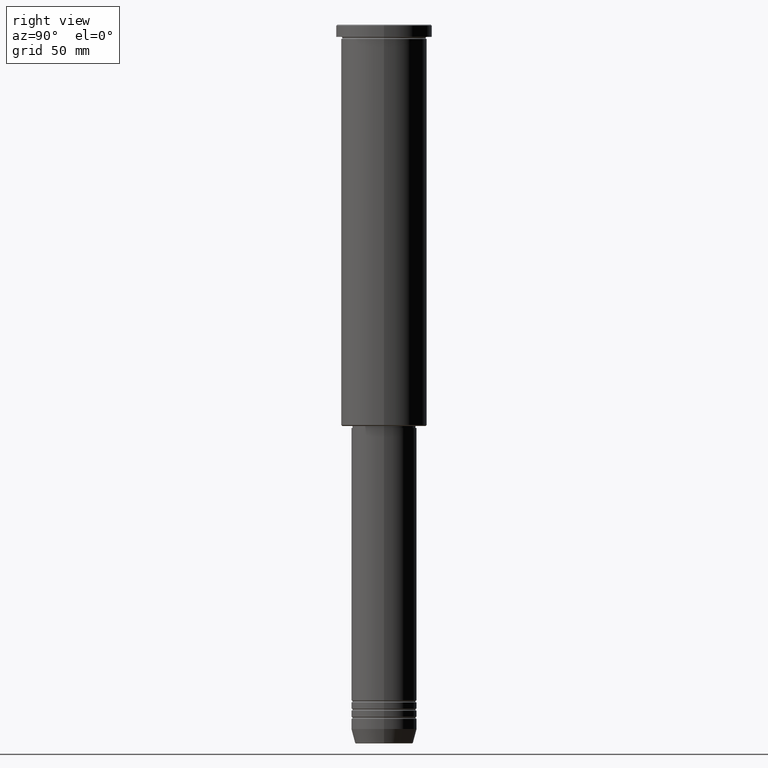
[diagram: clean part render]
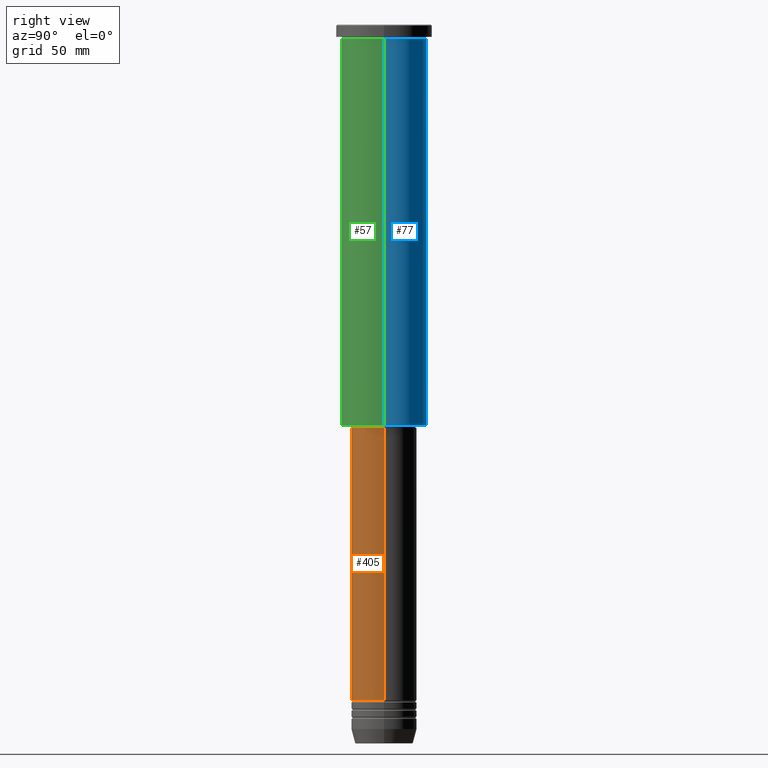
[diagram: same view with three faces highlighted in distinct colors, each labeled with its STEP entity id]
A machine part, right view with three faces highlighted in distinct colors.
Their STEP definitions:

[orange] entity #405 — the highlighted cylindrical surface (edge-blend (fillet) strip) has radius 16 mm, axis along (-0, -0, 1).
#41 = CARTESIAN_POINT ( 'NONE',  ( 16.00000000000000000, 0.000000000000000000, 0.000000000000000000 ) ) ;
#81 = EDGE_CURVE ( 'NONE', #437, #835, #417, .T. ) ;
#106 = FACE_OUTER_BOUND ( 'NONE', #423, .T. ) ;
#108 = DIRECTION ( 'NONE',  ( -0.000000000000000000, -0.000000000000000000, 1.000000000000000000 ) ) ;
#182 = DIRECTION ( 'NONE',  ( 1.000000000000000000, 0.000000000000000000, 0.000000000000000000 ) ) ;
#265 = LINE ( 'NONE', #878, #432 ) ;
#270 = CARTESIAN_POINT ( 'NONE',  ( -16.00000000000000000, 1.959434878635765131E-15, -329.9999999999999432 ) ) ;
#284 = CARTESIAN_POINT ( 'NONE',  ( 16.00000000000000355, 0.000000000000000000, -196.9999999999999432 ) ) ;
#293 = CYLINDRICAL_SURFACE ( 'NONE', #1165, 16.00000000000000000 ) ;
#379 = CARTESIAN_POINT ( 'NONE',  ( 0.000000000000000000, 0.000000000000000000, -196.9999999999999432 ) ) ;
#380 = DIRECTION ( 'NONE',  ( 1.000000000000000000, 0.000000000000000000, 0.000000000000000000 ) ) ;
#390 = ORIENTED_EDGE ( 'NONE', *, *, #858, .T. ) ;
#396 = ORIENTED_EDGE ( 'NONE', *, *, #704, .F. ) ;
#405 = ADVANCED_FACE ( 'NONE', ( #106 ), #293, .T. ) ;
#412 = CIRCLE ( 'NONE', #780, 16.00000000000000355 ) ;
#416 = VERTEX_POINT ( 'NONE', #270 ) ;
#417 = LINE ( 'NONE', #41, #495 ) ;
#423 = EDGE_LOOP ( 'NONE', ( #396, #390, #601, #876 ) ) ;
#432 = VECTOR ( 'NONE', #797, 1000.000000000000000 ) ;
#437 = VERTEX_POINT ( 'NONE', #1181 ) ;
#495 = VECTOR ( 'NONE', #1139, 1000.000000000000000 ) ;
#498 = AXIS2_PLACEMENT_3D ( 'NONE', #1003, #108, #182 ) ;
#601 = ORIENTED_EDGE ( 'NONE', *, *, #81, .T. ) ;
#704 = EDGE_CURVE ( 'NONE', #416, #896, #265, .T. ) ;
#780 = AXIS2_PLACEMENT_3D ( 'NONE', #379, #898, #906 ) ;
#797 = DIRECTION ( 'NONE',  ( -0.000000000000000000, -0.000000000000000000, 1.000000000000000000 ) ) ;
#801 = CARTESIAN_POINT ( 'NONE',  ( -16.00000000000000355, 1.959434878635765526E-15, -196.9999999999999432 ) ) ;
#809 = EDGE_CURVE ( 'NONE', #896, #835, #412, .T. ) ;
#835 = VERTEX_POINT ( 'NONE', #284 ) ;
#837 = CARTESIAN_POINT ( 'NONE',  ( 0.000000000000000000, 0.000000000000000000, 0.000000000000000000 ) ) ;
#858 = EDGE_CURVE ( 'NONE', #416, #437, #986, .T. ) ;
#876 = ORIENTED_EDGE ( 'NONE', *, *, #809, .F. ) ;
#878 = CARTESIAN_POINT ( 'NONE',  ( -16.00000000000000000, 1.959434878635765131E-15, 0.000000000000000000 ) ) ;
#896 = VERTEX_POINT ( 'NONE', #801 ) ;
#898 = DIRECTION ( 'NONE',  ( -0.000000000000000000, -0.000000000000000000, 1.000000000000000000 ) ) ;
#906 = DIRECTION ( 'NONE',  ( 1.000000000000000000, 0.000000000000000000, 0.000000000000000000 ) ) ;
#986 = CIRCLE ( 'NONE', #498, 16.00000000000000000 ) ;
#1003 = CARTESIAN_POINT ( 'NONE',  ( 0.000000000000000000, 0.000000000000000000, -329.9999999999999432 ) ) ;
#1018 = DIRECTION ( 'NONE',  ( -0.000000000000000000, -0.000000000000000000, 1.000000000000000000 ) ) ;
#1139 = DIRECTION ( 'NONE',  ( -0.000000000000000000, -0.000000000000000000, 1.000000000000000000 ) ) ;
#1165 = AXIS2_PLACEMENT_3D ( 'NONE', #837, #1018, #380 ) ;
#1181 = CARTESIAN_POINT ( 'NONE',  ( 16.00000000000000000, 0.000000000000000000, -329.9999999999999432 ) ) ;

[blue] entity #77 — the highlighted cylindrical surface (partial cylindrical patch) has radius 21 mm, axis along (-0, -0, 1).
#7 = DIRECTION ( 'NONE',  ( -0.000000000000000000, -0.000000000000000000, 1.000000000000000000 ) ) ;
#31 = CIRCLE ( 'NONE', #476, 21.00000000000000000 ) ;
#48 = DIRECTION ( 'NONE',  ( -0.000000000000000000, -0.000000000000000000, 1.000000000000000000 ) ) ;
#50 = CARTESIAN_POINT ( 'NONE',  ( 21.00000000000000000, 0.000000000000000000, 0.000000000000000000 ) ) ;
#75 = CARTESIAN_POINT ( 'NONE',  ( -21.00000000000000000, 2.571758278209441661E-15, -6.999999999999993783 ) ) ;
#76 = CARTESIAN_POINT ( 'NONE',  ( 21.00000000000000000, 0.000000000000000000, -6.999999999999993783 ) ) ;
#77 = ADVANCED_FACE ( 'NONE', ( #198 ), #944, .T. ) ;
#145 = DIRECTION ( 'NONE',  ( -0.000000000000000000, -0.000000000000000000, 1.000000000000000000 ) ) ;
#198 = FACE_OUTER_BOUND ( 'NONE', #530, .T. ) ;
#237 = AXIS2_PLACEMENT_3D ( 'NONE', #677, #424, #1119 ) ;
#336 = VERTEX_POINT ( 'NONE', #75 ) ;
#408 = LINE ( 'NONE', #50, #608 ) ;
#424 = DIRECTION ( 'NONE',  ( -0.000000000000000000, -0.000000000000000000, 1.000000000000000000 ) ) ;
#455 = CARTESIAN_POINT ( 'NONE',  ( 0.000000000000000000, 0.000000000000000000, -6.999999999999993783 ) ) ;
#476 = AXIS2_PLACEMENT_3D ( 'NONE', #455, #7, #803 ) ;
#530 = EDGE_LOOP ( 'NONE', ( #831, #1016, #762, #690 ) ) ;
#539 = AXIS2_PLACEMENT_3D ( 'NONE', #676, #48, #850 ) ;
#550 = VERTEX_POINT ( 'NONE', #952 ) ;
#586 = EDGE_CURVE ( 'NONE', #550, #675, #1027, .T. ) ;
#600 = DIRECTION ( 'NONE',  ( -0.000000000000000000, -0.000000000000000000, 1.000000000000000000 ) ) ;
#604 = EDGE_CURVE ( 'NONE', #550, #903, #408, .T. ) ;
#608 = VECTOR ( 'NONE', #145, 1000.000000000000000 ) ;
#672 = VECTOR ( 'NONE', #600, 1000.000000000000000 ) ;
#675 = VERTEX_POINT ( 'NONE', #969 ) ;
#676 = CARTESIAN_POINT ( 'NONE',  ( 0.000000000000000000, 0.000000000000000000, 0.000000000000000000 ) ) ;
#677 = CARTESIAN_POINT ( 'NONE',  ( 0.000000000000000000, 0.000000000000000000, -195.4999999999999432 ) ) ;
#686 = EDGE_CURVE ( 'NONE', #675, #336, #1151, .T. ) ;
#690 = ORIENTED_EDGE ( 'NONE', *, *, #604, .F. ) ;
#762 = ORIENTED_EDGE ( 'NONE', *, *, #844, .F. ) ;
#790 = CARTESIAN_POINT ( 'NONE',  ( -21.00000000000000000, 2.571758278209441661E-15, 0.000000000000000000 ) ) ;
#803 = DIRECTION ( 'NONE',  ( 1.000000000000000000, 0.000000000000000000, 0.000000000000000000 ) ) ;
#831 = ORIENTED_EDGE ( 'NONE', *, *, #586, .T. ) ;
#844 = EDGE_CURVE ( 'NONE', #903, #336, #31, .T. ) ;
#850 = DIRECTION ( 'NONE',  ( 1.000000000000000000, 0.000000000000000000, 0.000000000000000000 ) ) ;
#903 = VERTEX_POINT ( 'NONE', #76 ) ;
#944 = CYLINDRICAL_SURFACE ( 'NONE', #539, 21.00000000000000000 ) ;
#952 = CARTESIAN_POINT ( 'NONE',  ( 21.00000000000000000, 0.000000000000000000, -195.4999999999999432 ) ) ;
#969 = CARTESIAN_POINT ( 'NONE',  ( -21.00000000000000000, 2.571758278209441661E-15, -195.4999999999999432 ) ) ;
#1016 = ORIENTED_EDGE ( 'NONE', *, *, #686, .T. ) ;
#1027 = CIRCLE ( 'NONE', #237, 21.00000000000000000 ) ;
#1119 = DIRECTION ( 'NONE',  ( -1.000000000000000000, 0.000000000000000000, 0.000000000000000000 ) ) ;
#1151 = LINE ( 'NONE', #790, #672 ) ;

[green] entity #57 — the highlighted cylindrical surface (partial cylindrical patch) has radius 21 mm, axis along (-0, -0, 1).
#50 = CARTESIAN_POINT ( 'NONE',  ( 21.00000000000000000, 0.000000000000000000, 0.000000000000000000 ) ) ;
#57 = ADVANCED_FACE ( 'NONE', ( #118 ), #399, .T. ) ;
#75 = CARTESIAN_POINT ( 'NONE',  ( -21.00000000000000000, 2.571758278209441661E-15, -6.999999999999993783 ) ) ;
#76 = CARTESIAN_POINT ( 'NONE',  ( 21.00000000000000000, 0.000000000000000000, -6.999999999999993783 ) ) ;
#109 = CIRCLE ( 'NONE', #755, 21.00000000000000000 ) ;
#118 = FACE_OUTER_BOUND ( 'NONE', #200, .T. ) ;
#145 = DIRECTION ( 'NONE',  ( -0.000000000000000000, -0.000000000000000000, 1.000000000000000000 ) ) ;
#176 = DIRECTION ( 'NONE',  ( -0.000000000000000000, -0.000000000000000000, 1.000000000000000000 ) ) ;
#200 = EDGE_LOOP ( 'NONE', ( #378, #748, #264, #1098 ) ) ;
#208 = AXIS2_PLACEMENT_3D ( 'NONE', #278, #832, #577 ) ;
#264 = ORIENTED_EDGE ( 'NONE', *, *, #604, .T. ) ;
#268 = DIRECTION ( 'NONE',  ( 1.000000000000000000, 0.000000000000000000, 0.000000000000000000 ) ) ;
#278 = CARTESIAN_POINT ( 'NONE',  ( 0.000000000000000000, 0.000000000000000000, 0.000000000000000000 ) ) ;
#312 = CIRCLE ( 'NONE', #633, 21.00000000000000000 ) ;
#336 = VERTEX_POINT ( 'NONE', #75 ) ;
#378 = ORIENTED_EDGE ( 'NONE', *, *, #686, .F. ) ;
#399 = CYLINDRICAL_SURFACE ( 'NONE', #208, 21.00000000000000000 ) ;
#408 = LINE ( 'NONE', #50, #608 ) ;
#550 = VERTEX_POINT ( 'NONE', #952 ) ;
#559 = DIRECTION ( 'NONE',  ( -0.000000000000000000, -0.000000000000000000, 1.000000000000000000 ) ) ;
#562 = CARTESIAN_POINT ( 'NONE',  ( 0.000000000000000000, 0.000000000000000000, -6.999999999999993783 ) ) ;
#577 = DIRECTION ( 'NONE',  ( 1.000000000000000000, 0.000000000000000000, 0.000000000000000000 ) ) ;
#600 = DIRECTION ( 'NONE',  ( -0.000000000000000000, -0.000000000000000000, 1.000000000000000000 ) ) ;
#604 = EDGE_CURVE ( 'NONE', #550, #903, #408, .T. ) ;
#608 = VECTOR ( 'NONE', #145, 1000.000000000000000 ) ;
#632 = CARTESIAN_POINT ( 'NONE',  ( 0.000000000000000000, 0.000000000000000000, -195.4999999999999432 ) ) ;
#633 = AXIS2_PLACEMENT_3D ( 'NONE', #562, #176, #268 ) ;
#672 = VECTOR ( 'NONE', #600, 1000.000000000000000 ) ;
#675 = VERTEX_POINT ( 'NONE', #969 ) ;
#686 = EDGE_CURVE ( 'NONE', #675, #336, #1151, .T. ) ;
#713 = DIRECTION ( 'NONE',  ( -1.000000000000000000, 0.000000000000000000, 0.000000000000000000 ) ) ;
#748 = ORIENTED_EDGE ( 'NONE', *, *, #856, .T. ) ;
#755 = AXIS2_PLACEMENT_3D ( 'NONE', #632, #559, #713 ) ;
#790 = CARTESIAN_POINT ( 'NONE',  ( -21.00000000000000000, 2.571758278209441661E-15, 0.000000000000000000 ) ) ;
#832 = DIRECTION ( 'NONE',  ( -0.000000000000000000, -0.000000000000000000, 1.000000000000000000 ) ) ;
#856 = EDGE_CURVE ( 'NONE', #675, #550, #109, .T. ) ;
#903 = VERTEX_POINT ( 'NONE', #76 ) ;
#952 = CARTESIAN_POINT ( 'NONE',  ( 21.00000000000000000, 0.000000000000000000, -195.4999999999999432 ) ) ;
#969 = CARTESIAN_POINT ( 'NONE',  ( -21.00000000000000000, 2.571758278209441661E-15, -195.4999999999999432 ) ) ;
#1054 = EDGE_CURVE ( 'NONE', #336, #903, #312, .T. ) ;
#1098 = ORIENTED_EDGE ( 'NONE', *, *, #1054, .F. ) ;
#1151 = LINE ( 'NONE', #790, #672 ) ;